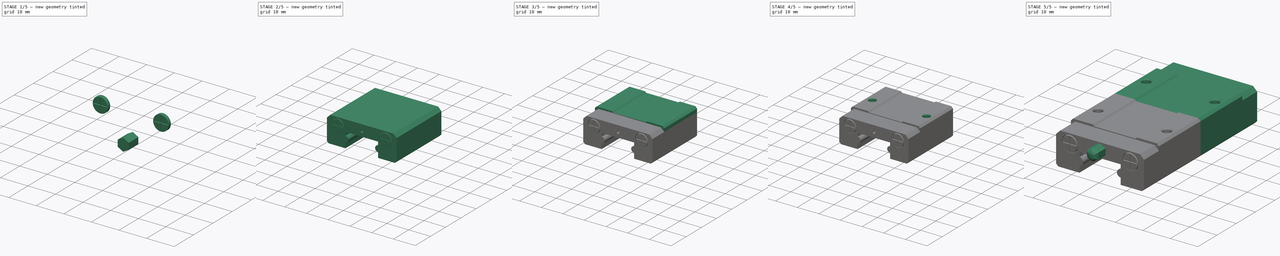
[diagram: build sequence overview — one tinted view per stage of 5, left to right]
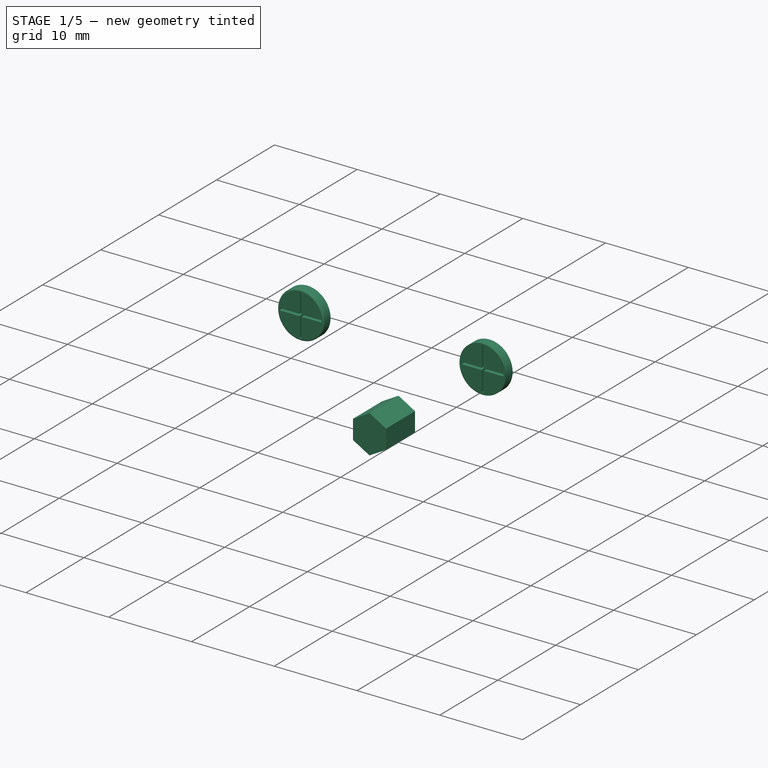
[diagram: stage 1 of 5 — iso view after this stage's code; geometry added in this stage tinted green]
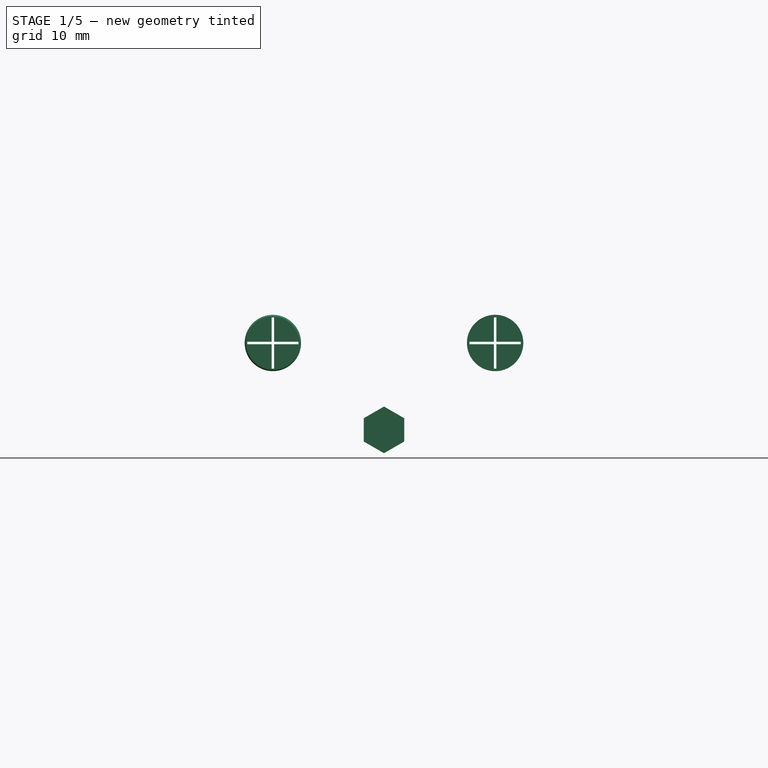
[diagram: stage 1 of 5 — front view after this stage's code; geometry added in this stage tinted green]
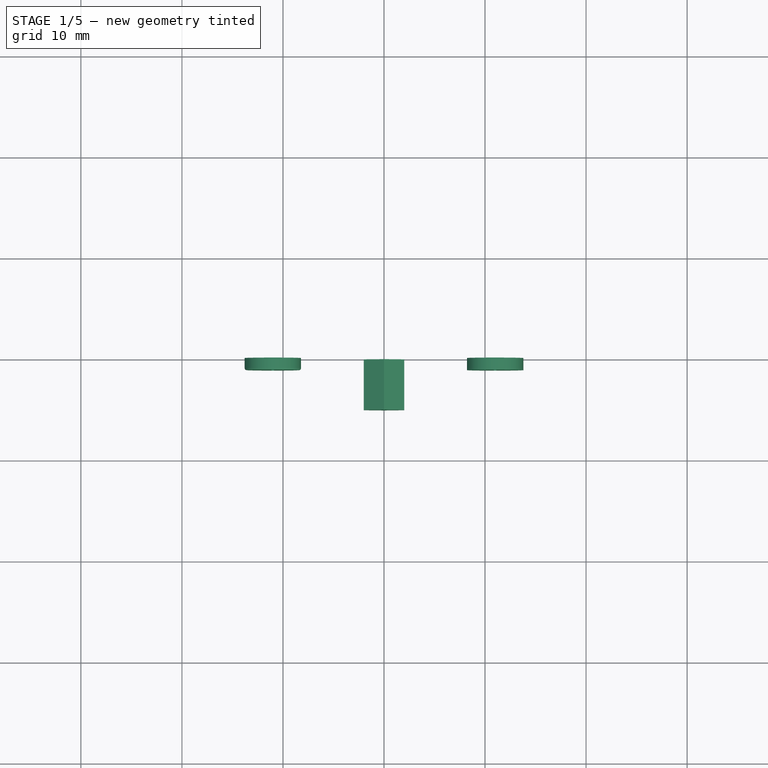
[diagram: stage 1 of 5 — top view after this stage's code; geometry added in this stage tinted green]
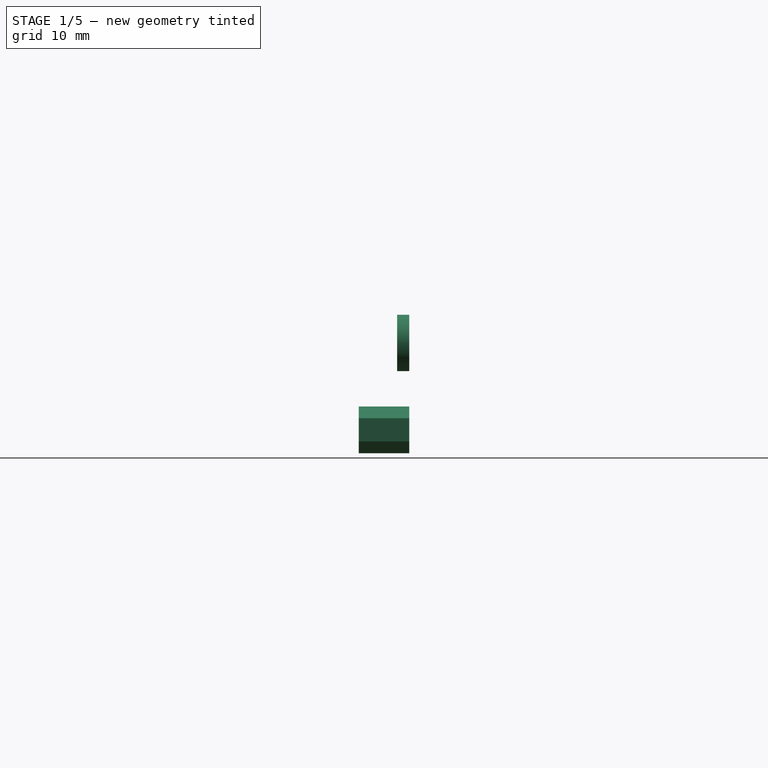
[diagram: stage 1 of 5 — right view after this stage's code; geometry added in this stage tinted green]
FCSTD DOCUMENT  (FreeCAD 0.20R)
Label: LinearSlide-MGN15x-Block
License: Creative Commons Attribution-ShareAlike
LicenseURL: http://creativecommons.org/licenses/by-sa/4.0/
objects: Sketcher::SketchObject×9, PartDesign::Body×6, PartDesign::Pad×5, Part::MultiFuse×5, PartDesign::Pocket×2, PartDesign::Revolution×2, PartDesign::Fillet×2, Spreadsheet::Sheet×1, Part::Cut×1, Part::Mirroring×1, Part::Fillet×1
note: 45 computed .brp shape members not serialized (recipe doc carries the construction recipe); baked Part::Feature solids carry a one-line shape summary decoded from their .brp

FEATURE [Sketcher::SketchObject] Sketch009
  FullyConstrained = true
  MapMode = 5
  Placement = pos=(0,0,0) rot=(1,0,0;1.5708rad)
  Support = -> [XZ_Plane004]
  sketch-geometry (14):
    g0: Circle CenterX=-11 CenterY=8.6 CenterZ=0 NormalX=0 NormalY=0 NormalZ=1 AngleXU=0 Radius=2.79
    g1: Circle CenterX=-11 CenterY=8.6 CenterZ=0 NormalX=0 NormalY=0 NormalZ=1 AngleXU=0 Radius=2.54
    g2: LineSegment StartX=-11.125 StartY=11.1369 StartZ=0 EndX=-10.875 EndY=11.1369 EndZ=0
    g3: LineSegment StartX=-10.875 StartY=11.1369 StartZ=0 EndX=-10.875 EndY=8.725 EndZ=0
    g4: LineSegment StartX=-10.875 StartY=8.725 StartZ=0 EndX=-8.46308 EndY=8.725 EndZ=0
    g5: LineSegment StartX=-8.46308 StartY=8.725 StartZ=0 EndX=-8.46308 EndY=8.475 EndZ=0
    g6: LineSegment StartX=-8.46308 StartY=8.475 StartZ=0 EndX=-10.875 EndY=8.475 EndZ=0
    g7: LineSegment StartX=-10.875 StartY=8.475 StartZ=0 EndX=-10.875 EndY=6.06308 EndZ=0
    g8: LineSegment StartX=-10.875 StartY=6.06308 StartZ=0 EndX=-11.125 EndY=6.06308 EndZ=0
    g9: LineSegment StartX=-11.125 StartY=6.06308 StartZ=0 EndX=-11.125 EndY=8.475 EndZ=0
    g10: LineSegment StartX=-11.125 StartY=8.475 StartZ=0 EndX=-13.5369 EndY=8.475 EndZ=0
    g11: LineSegment StartX=-13.5369 StartY=8.475 StartZ=0 EndX=-13.5369 EndY=8.725 EndZ=0
    g12: LineSegment StartX=-13.5369 StartY=8.725 StartZ=0 EndX=-11.125 EndY=8.725 EndZ=0
    g13: LineSegment StartX=-11.125 StartY=8.725 StartZ=0 EndX=-11.125 EndY=11.1369 EndZ=0
  constraints (42):
    c: Diameter(g0) = 5.58
    c: DistanceY(g-1,g0) = 8.6
    c: DistanceX(g0,g-1) = 11
    c: Diameter(g1) = 5.08
    c: DistanceY(g-1,g1) = 8.6
    c: DistanceX(g1,g-1) = 11
    c: Horizontal(g2)
    c: Coincident(g2,g3)
    c: Vertical(g3)
    c: Coincident(g3,g4)
    c: Horizontal(g4)
    c: Coincident(g4,g5)
    c: Vertical(g5)
    c: Coincident(g5,g6)
    c: Horizontal(g6)
    c: Coincident(g6,g7)
    c: Vertical(g7)
    c: Coincident(g7,g8)
    c: Horizontal(g8)
    c: Coincident(g8,g9)
    c: Vertical(g9)
    c: Coincident(g9,g10)
    c: Horizontal(g10)
    c: Coincident(g10,g11)
    c: Vertical(g11)
    c: Coincident(g11,g12)
    c: Horizontal(g12)
    c: Coincident(g12,g13)
    c: Coincident(g13,g2)
    c: Vertical(g13)
    c: Equal(g8,g5)
    c: Equal(g5,g2)
    c: Equal(g2,g11)
    c: DistanceY(g11,g11) = 0.25
    c: PointOnObject(g7,g1)
    c: PointOnObject(g8,g1)
    c: PointOnObject(g10,g1)
    c: PointOnObject(g11,g1)
    c: PointOnObject(g2,g1)
    c: PointOnObject(g2,g1)
    c: PointOnObject(g4,g1)
    c: PointOnObject(g5,g1)
FEATURE [PartDesign::Pad] Pad003
  Direction = (0,-1,-2e-16)
  Length = 1.2
  Length2 = 10
  Placement = pos=(0,0,0) rot=(1,0,0;1.5708rad)
  Profile = -> Sketch009
  ReferenceAxis = -> Sketch009 [N_Axis]
  Type = 0
FEATURE [Sketcher::SketchObject] Sketch008
  FullyConstrained = true
  MapMode = 5
  Placement = pos=(0,0,0) rot=(1,0,0;1.5708rad)
  Support = -> [XZ_Plane003]
  sketch-geometry (14):
    g0: Circle CenterX=11 CenterY=8.6 CenterZ=0 NormalX=0 NormalY=0 NormalZ=1 AngleXU=0 Radius=2.79
    g1: Circle CenterX=11 CenterY=8.6 CenterZ=0 NormalX=0 NormalY=0 NormalZ=1 AngleXU=0 Radius=2.54
    g2: LineSegment StartX=10.875 StartY=11.1369 StartZ=0 EndX=11.125 EndY=11.1369 EndZ=0
    g3: LineSegment StartX=11.125 StartY=11.1369 StartZ=0 EndX=11.125 EndY=8.725 EndZ=0
    g4: LineSegment StartX=11.125 StartY=8.725 StartZ=0 EndX=13.5369 EndY=8.725 EndZ=0
    g5: LineSegment StartX=13.5369 StartY=8.725 StartZ=0 EndX=13.5369 EndY=8.475 EndZ=0
    g6: LineSegment StartX=13.5369 StartY=8.475 StartZ=0 EndX=11.125 EndY=8.475 EndZ=0
    g7: LineSegment StartX=11.125 StartY=8.475 StartZ=0 EndX=11.125 EndY=6.06308 EndZ=0
    g8: LineSegment StartX=11.125 StartY=6.06308 StartZ=0 EndX=10.875 EndY=6.06308 EndZ=0
    g9: LineSegment StartX=10.875 StartY=6.06308 StartZ=0 EndX=10.875 EndY=8.475 EndZ=0
    g10: LineSegment StartX=10.875 StartY=8.475 StartZ=0 EndX=8.46308 EndY=8.475 EndZ=0
    g11: LineSegment StartX=8.46308 StartY=8.475 StartZ=0 EndX=8.46308 EndY=8.725 EndZ=0
    g12: LineSegment StartX=8.46308 StartY=8.725 StartZ=0 EndX=10.875 EndY=8.725 EndZ=0
    g13: LineSegment StartX=10.875 StartY=8.725 StartZ=0 EndX=10.875 EndY=11.1369 EndZ=0
  constraints (42):
    c: Diameter(g0) = 5.58
    c: DistanceY(g-1,g0) = 8.6
    c: DistanceX(g0,g-1) = -11
    c: Diameter(g1) = 5.08
    c: DistanceY(g-1,g1) = 8.6
    c: DistanceX(g-1,g1) = 11
    c: Horizontal(g2)
    c: Coincident(g2,g3)
    c: Vertical(g3)
    c: Coincident(g3,g4)
    c: Horizontal(g4)
    c: Coincident(g4,g5)
    c: Vertical(g5)
    c: Coincident(g5,g6)
    c: Horizontal(g6)
    c: Coincident(g6,g7)
    c: Vertical(g7)
    c: Coincident(g7,g8)
    c: Horizontal(g8)
    c: Coincident(g8,g9)
    c: Vertical(g9)
    c: Coincident(g9,g10)
    c: Horizontal(g10)
    c: Coincident(g10,g11)
    c: Vertical(g11)
    c: Coincident(g11,g12)
    c: Horizontal(g12)
    c: Coincident(g12,g13)
    c: Coincident(g13,g2)
    c: Vertical(g13)
    c: Equal(g8,g5)
    c: Equal(g5,g2)
    c: Equal(g2,g11)
    c: DistanceY(g11,g11) = 0.25
    c: PointOnObject(g8,g1)
    c: PointOnObject(g2,g1)
    c: PointOnObject(g2,g1)
    c: PointOnObject(g4,g1)
    c: PointOnObject(g5,g1)
    c: PointOnObject(g10,g1)
    c: PointOnObject(g11,g1)
    c: PointOnObject(g7,g1)
FEATURE [PartDesign::Pad] Pad004
  Direction = (0,-1,-2e-16)
  Length = 1.2
  Length2 = 10
  Placement = pos=(0,0,0) rot=(1,0,0;1.5708rad)
  Profile = -> Sketch008
  ReferenceAxis = -> Sketch008 [N_Axis]
  Type = 0
FEATURE [PartDesign::Body] Body003  label="Right cover screw"
  Group = -> [Sketch008,Pad004,Fillet]
  Origin = -> Origin003
  Placement = pos=(0,-28.4,0) rot=(0,0,1;0rad)
  Tip = -> Fillet
  expr: .Placement.Base.y = (<<Set MGN Block Parameters>>.length / 2 - 1mm) * -1
FEATURE [PartDesign::Fillet] Fillet001
  Base = -> Pad003 [Edge3]
  BaseFeature = -> Pad003
  Placement = pos=(0,0,0) rot=(1,0,0;1.5708rad)
  Radius = 0.2
  SupportTransform = false
  UseAllEdges = false
FEATURE [Sketcher::SketchObject] Sketch011
  FullyConstrained = true
  MapMode = 5
  Placement = pos=(0,0,0) rot=(1,0,0;1.5708rad)
  Support = -> [XZ_Plane006]
  sketch-geometry (7):
    g0: LineSegment StartX=2 StartY=-1.1547 StartZ=0 EndX=2 EndY=1.1547 EndZ=0
    g1: LineSegment StartX=2 StartY=1.1547 StartZ=0 EndX=-2.2e-15 EndY=2.3094 EndZ=0
    g2: LineSegment StartX=-2.2e-15 StartY=2.3094 StartZ=0 EndX=-2 EndY=1.1547 EndZ=0
    g3: LineSegment StartX=-2 StartY=1.1547 StartZ=0 EndX=-2 EndY=-1.1547 EndZ=0
    g4: LineSegment StartX=-2 StartY=-1.1547 StartZ=0 EndX=-2.2e-15 EndY=-2.3094 EndZ=0
    g5: LineSegment StartX=-2.2e-15 StartY=-2.3094 StartZ=0 EndX=2 EndY=-1.1547 EndZ=0
    g6: Circle CenterX=0 CenterY=0 CenterZ=0 NormalX=0 NormalY=0 NormalZ=1 AngleXU=0 Radius=2.3094
  constraints (16):
    c: Coincident(g0,g1)
    c: Coincident(g1,g2)
    c: Coincident(g2,g3)
    c: Coincident(g3,g4)
    c: Coincident(g4,g5)
    c: Coincident(g5,g0)
    c: Equal(g0, g1-g5) x5
    c: PointOnObject(g0,g6)
    c: PointOnObject(g1,g6)
    c: PointOnObject(g2,g6)
    c: PointOnObject(g3,g6)
    c: PointOnObject(g4,g6)
    c: PointOnObject(g5,g6)
    c: Vertical(g3)
    c: Coincident(g6,g-1)
    c: DistanceX(g2,g0) = 4
FEATURE [PartDesign::Pad] Pad005
  Direction = (0,-1,-2e-16)
  Length = 5
  Length2 = 10
  Placement = pos=(0,0,0) rot=(1,0,0;1.5708rad)
  Profile = -> Sketch011
  ReferenceAxis = -> Sketch011 [N_Axis]
  Type = 0
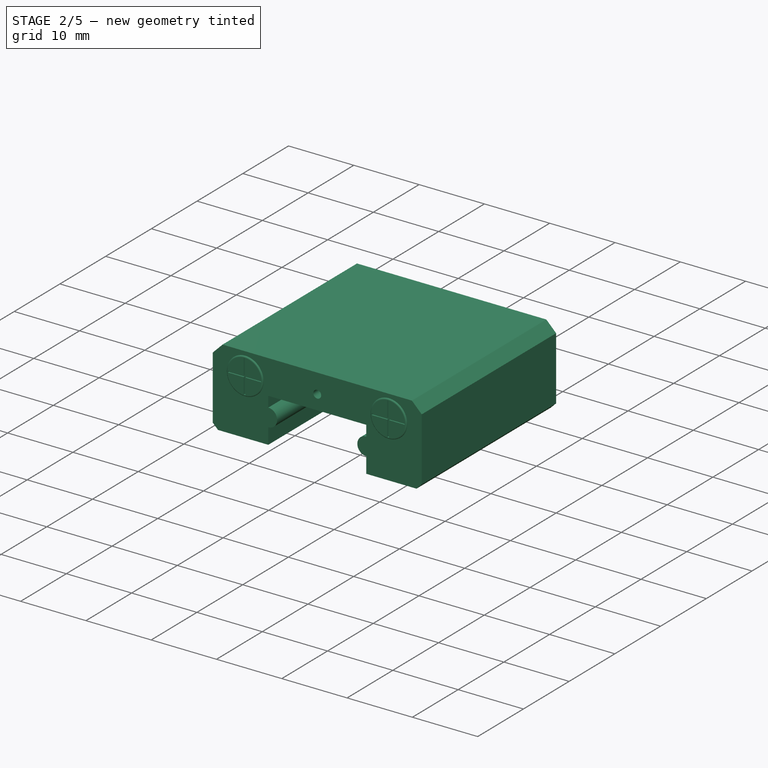
[diagram: stage 2 of 5 — iso view after this stage's code; geometry added in this stage tinted green]
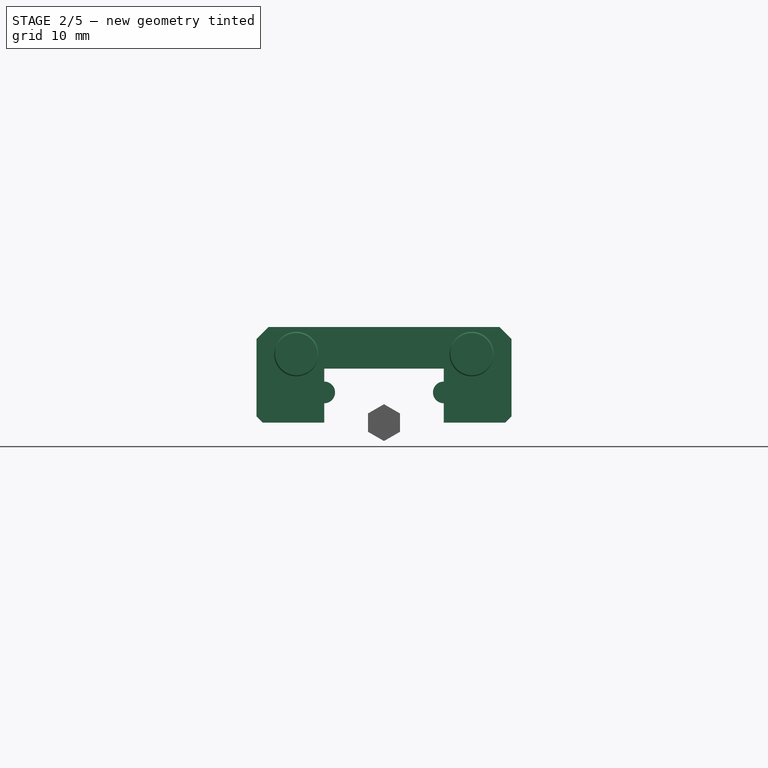
[diagram: stage 2 of 5 — front view after this stage's code; geometry added in this stage tinted green]
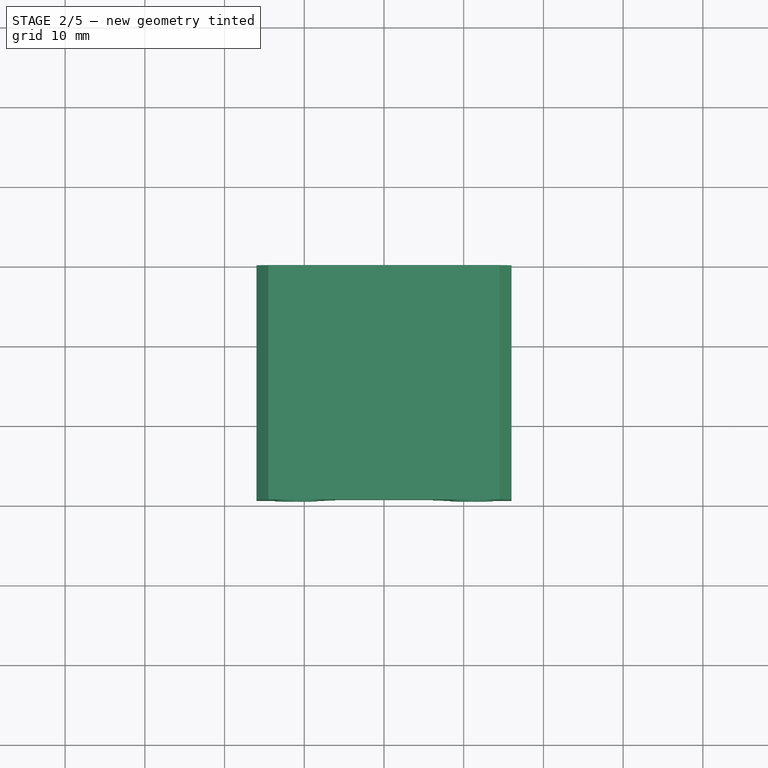
[diagram: stage 2 of 5 — top view after this stage's code; geometry added in this stage tinted green]
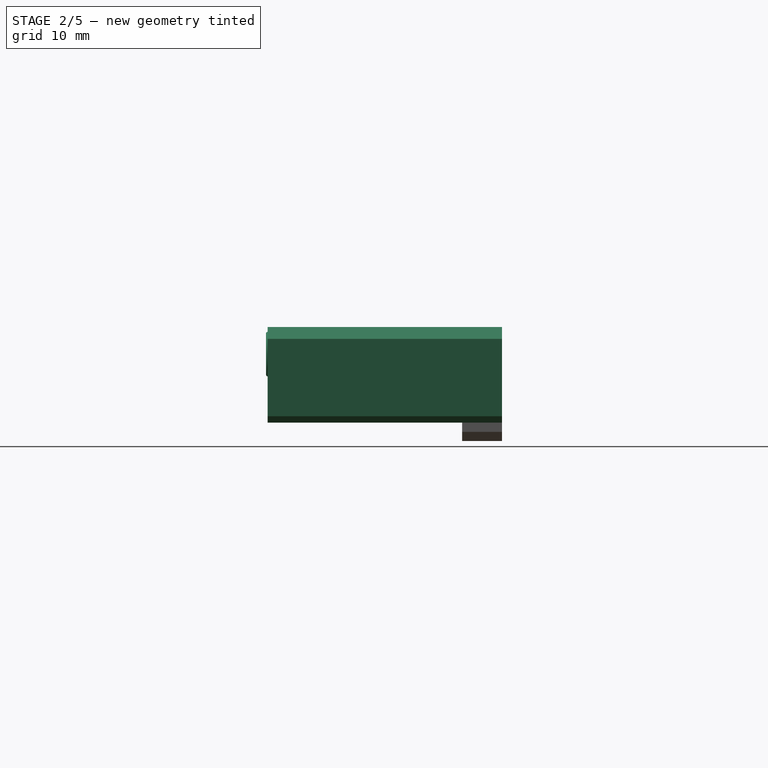
[diagram: stage 2 of 5 — right view after this stage's code; geometry added in this stage tinted green]
FEATURE [Sketcher::SketchObject] Sketch  label="Block main section"
  FullyConstrained = true
  MapMode = 5
  Placement = pos=(0,0,0) rot=(1,0,0;1.5708rad)
  Support = -> [XZ_Plane]
  sketch-geometry (16):
    g0: LineSegment StartX=-15.2 StartY=0 StartZ=0 EndX=-7.5 EndY=0 EndZ=0
    g1: LineSegment StartX=-7.5 StartY=0 StartZ=0 EndX=-7.5 EndY=2.43 EndZ=0
    g2: LineSegment StartX=-7.5 StartY=6.78 StartZ=0 EndX=7.5 EndY=6.78 EndZ=0
    g3: LineSegment StartX=7.5 StartY=6.78 StartZ=0 EndX=7.5 EndY=5.15 EndZ=0
    g4: LineSegment StartX=7.5 StartY=0 StartZ=0 EndX=15.2 EndY=0 EndZ=0
    g5: ArcOfCircle CenterX=-7.5 CenterY=3.79 CenterZ=0 NormalX=0 NormalY=0 NormalZ=1 AngleXU=0 Radius=1.36 StartAngle=4.71239 EndAngle=7.85398
    g6: ArcOfCircle CenterX=7.5 CenterY=3.79 CenterZ=0 NormalX=0 NormalY=0 NormalZ=1 AngleXU=0 Radius=1.36 StartAngle=1.5708 EndAngle=4.71239
    g7: LineSegment StartX=-7.5 StartY=5.15 StartZ=0 EndX=-7.5 EndY=6.78 EndZ=0
    g8: LineSegment StartX=7.5 StartY=2.43 StartZ=0 EndX=7.5 EndY=0 EndZ=0
    g9: LineSegment StartX=-16 StartY=10.5 StartZ=0 EndX=-14.5 EndY=12 EndZ=0
    g10: LineSegment StartX=-14.5 StartY=12 StartZ=0 EndX=14.5 EndY=12 EndZ=0
    g11: LineSegment StartX=14.5 StartY=12 StartZ=0 EndX=16 EndY=10.5 EndZ=0
    g12: LineSegment StartX=-16 StartY=10.5 StartZ=0 EndX=-16 EndY=0.8 EndZ=0
    g13: LineSegment StartX=-16 StartY=0.8 StartZ=0 EndX=-15.2 EndY=-1e-16 EndZ=0
    g14: LineSegment StartX=16 StartY=10.5 StartZ=0 EndX=16 EndY=0.8 EndZ=0
    g15: LineSegment StartX=16 StartY=0.8 StartZ=0 EndX=15.2 EndY=-1e-16 EndZ=0
  constraints (42):
    c: Coincident(g0,g1)
    c: Vertical(g1)
    c: Coincident(g8,g4)
    c: Symmetric(g2,g2,g-2)
    c: Symmetric(g7,g3,g-2)
    c: Symmetric(g0,g8,g-2)
    c: Coincident(g2,g3)
    c: Radius(g6) = 1.36
    c: Symmetric(g6,g5,g-2)
    c: PointOnObject(g5,g1)
    c: Coincident(g1,g5)
    c: Coincident(g7,g5)
    c: Coincident(g6,g8)
    c: Coincident(g6,g3)
    c: Symmetric(g6,g1,g-2)
    c: Symmetric(g5,g3,g-2)
    c: DistanceX(g2,g2) = 15
    c: Vertical(g3)
    c: DistanceX(g0,g0) = 7.7
    c: Horizontal(g0)
    c: DistanceY(g0,g5) = 3.79
    c: DistanceY(g4,g2) = 6.78
    c: Coincident(g9,g10)
    c: Coincident(g10,g11)
    c: Symmetric(g11,g9,g-2)
    c: Symmetric(g10,g9,g-2)
    c: DistanceY(g0,g9) = 12
    c: DistanceX(g9,g11) = 32
    c: DistanceY(g9,g9) = 1.5
    c: DistanceX(g9,g9) = 1.5
    c: Coincident(g9,g12)
    c: Vertical(g12)
    c: Coincident(g12,g13)
    c: Coincident(g13,g0)
    c: Coincident(g11,g14)
    c: Coincident(g14,g15)
    c: Coincident(g15,g4)
    c: Symmetric(g4,g0,g-2)
    c: Symmetric(g14,g12,g-2)
    c: DistanceY(g0,g12) = 0.8
    c: DistanceX(g0,g4) = 15
    c: PointOnObject(g0,g-1)
FEATURE [PartDesign::Pad] Pad
  Direction = (0,-1,-2e-16)
  Length = 29.4
  Length2 = 10
  Placement = pos=(0,0,0) rot=(1,0,0;1.5708rad)
  Profile = -> Sketch
  ReferenceAxis = -> Sketch [N_Axis]
  Type = 0
  expr: Length = <<Set MGN Block Parameters>>.length / 2
FEATURE [Spreadsheet::Sheet] Spreadsheet  label="Set MGN Block Parameters"
  cells = A1=Taken from the datasheet at http://motioncontrolsystems.hiwin.us/Asset/MG-Series-Catalog.pdf; B1=Taken from the datasheet at http://motioncontrolsystems.hiwin.us/Asset/MG-Series-Catalog.pdf; C1=Taken from the datasheet at http://motioncontrolsystems.hiwin.us/Asset/MG-Series-Catalog.pdf; D1=Taken from the datasheet at http://motioncontrolsystems.hiwin.us/Asset/MG-Series-Catalog.pdf; E1=Taken from the datasheet at http://motioncontrolsystems.hiwin.us/Asset/MG-Series-Catalog.pdf; F1=Taken from the datasheet at http://motioncontrolsystems.hiwin.us/Asset/MG-Series-Catalog.pdf; G1=Taken from the datasheet at http://motioncontrolsystems.hiwin.us/Asset/MG-Series-Catalog.pdf; H1=Taken from the datasheet at http://motioncontrolsystems.hiwin.us/Asset/MG-Series-Catalog.pdf; A2=Copy the data corresponding to the desired model in the "SetValues" column; A3=Copia los datos correspondientes al modelo deseado a la columna "SetValues"; A4=Description; B4=Descripción; C4=Parameter; D4=SetValues; E4=MGN15C; F4=MGN15H; A5=Model name; B5=Nombre del modelo; C5=Mn; D5(modelName)=MGN15H; E5=MGN15C; F5=MGN15H; A6=Distancia entre taladros 2; B6=Distancia entre taladros 2; C6=C ; D6(distanceBetwenDrills2)==25mm; E6==20mm; F6==25mm; A7=Metal base length; B7=Longitud base metalica; C7=L1 ; D7(metalLength)==43.4mm; E7==26.7mm; F7==43.4mm; A8=Total length; B8=Longitud total; C8=L ; D8(length)==58.8mm; E8==42.1mm; F8==58.8mm
FEATURE [Sketcher::SketchObject] Sketch001
  FullyConstrained = true
  MapMode = 5
  Placement = pos=(0,-29.4,-6.5e-15) rot=(1,0,0;1.5708rad)
  Support = -> [Pad]
  sketch-geometry (1):
    g0: Circle CenterX=0 CenterY=9 CenterZ=0 NormalX=0 NormalY=0 NormalZ=1 AngleXU=0 Radius=0.6
  constraints (3):
    c: PointOnObject(g0,g-2)
    c: Diameter(g0) = 1.2
    c: DistanceY(g-1,g0) = 9
FEATURE [PartDesign::Pocket] Pocket
  BaseFeature = -> Pad
  Direction = (0,1,2e-16)
  Length = 3
  Length2 = 5
  Placement = pos=(0,0,0) rot=(1,0,0;1.5708rad)
  Profile = -> Sketch001
  ReferenceAxis = -> Sketch001 [N_Axis]
  Type = 0
FEATURE [PartDesign::Fillet] Fillet
  Base = -> Pad004 [Edge3]
  BaseFeature = -> Pad004
  Placement = pos=(0,0,0) rot=(1,0,0;1.5708rad)
  Radius = 0.2
  SupportTransform = false
  UseAllEdges = false
FEATURE [PartDesign::Body] Body004  label="Left cover screw"
  Group = -> [Sketch009,Pad003,Fillet001]
  Origin = -> Origin004
  Placement = pos=(0,-28.4,0) rot=(0,0,1;0rad)
  Tip = -> Fillet001
  expr: .Placement.Base.y = (<<Set MGN Block Parameters>>.length / 2 - 1mm) * -1
FEATURE [Part::MultiFuse] Fusion001  label="Cover screws"
  Shapes = -> [Body004,Body003]
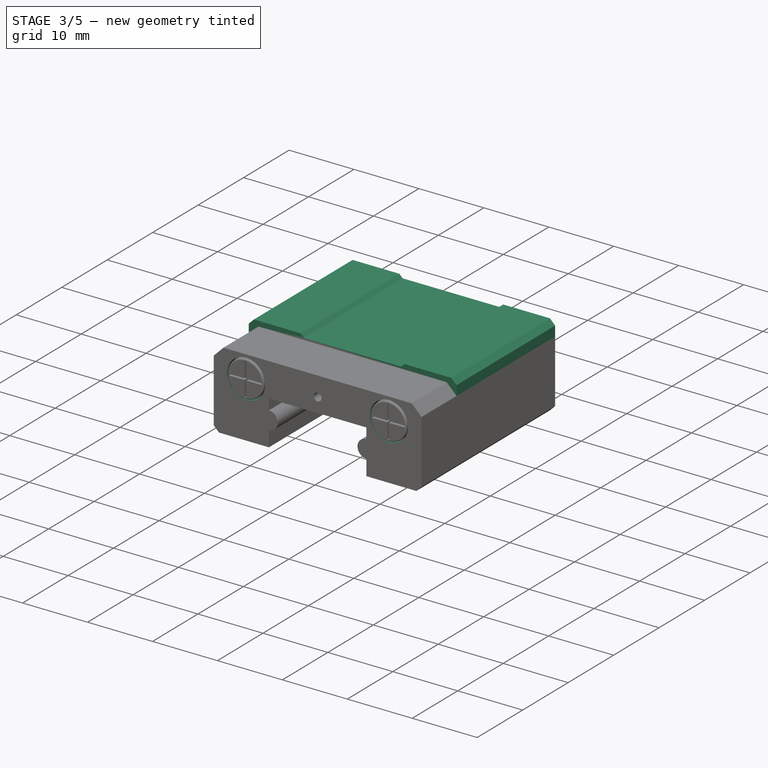
[diagram: stage 3 of 5 — iso view after this stage's code; geometry added in this stage tinted green]
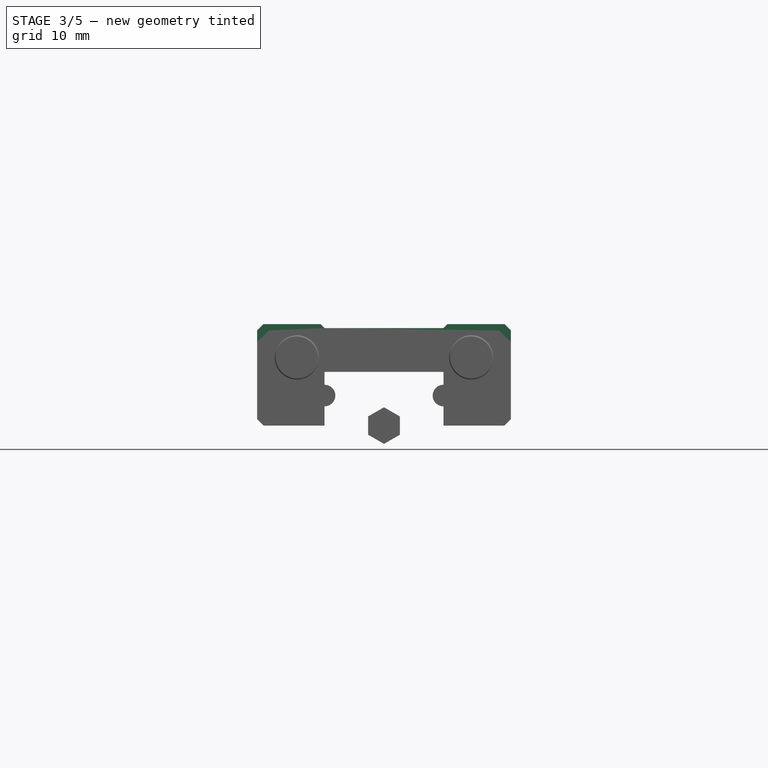
[diagram: stage 3 of 5 — front view after this stage's code; geometry added in this stage tinted green]
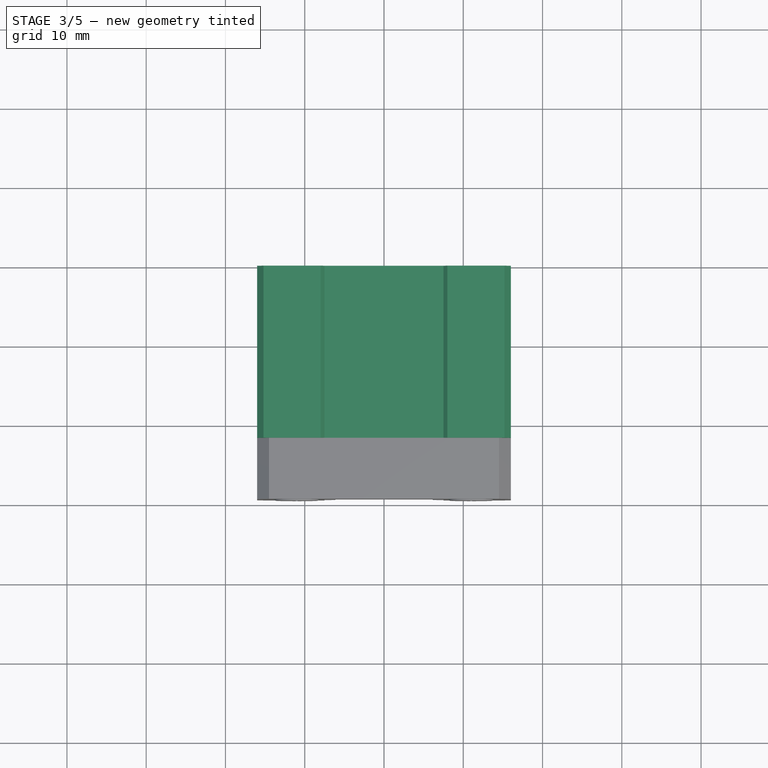
[diagram: stage 3 of 5 — top view after this stage's code; geometry added in this stage tinted green]
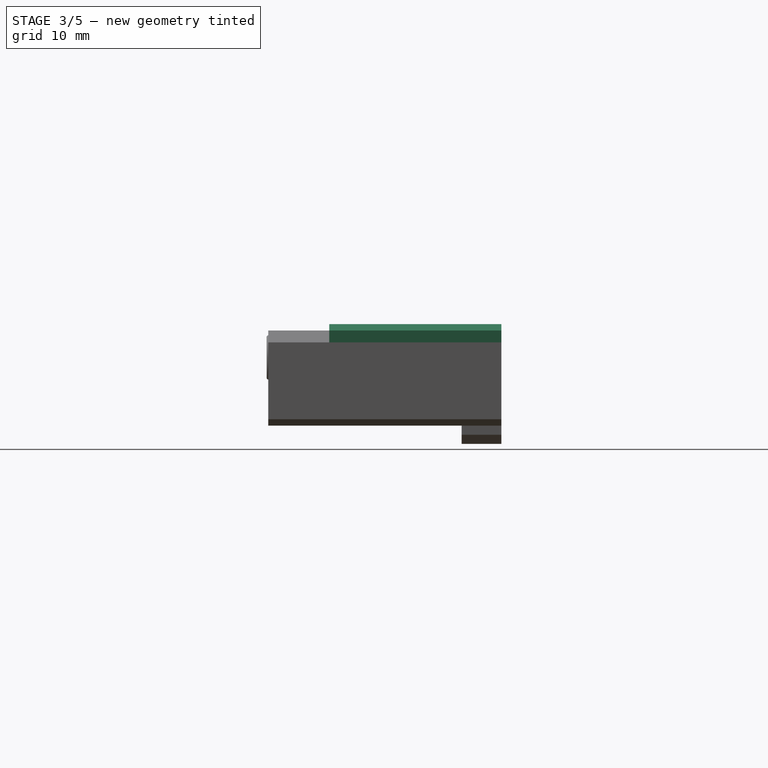
[diagram: stage 3 of 5 — right view after this stage's code; geometry added in this stage tinted green]
FEATURE [Sketcher::SketchObject] Sketch002
  FullyConstrained = true
  MapMode = 5
  Placement = pos=(0,-29.4,-6.5e-15) rot=(1,0,0;1.5708rad)
  Support = -> [Pocket]
  sketch-geometry (2):
    g0: Circle CenterX=-11 CenterY=8.6 CenterZ=0 NormalX=0 NormalY=0 NormalZ=1 AngleXU=0 Radius=2.94
    g1: Circle CenterX=11 CenterY=8.6 CenterZ=0 NormalX=0 NormalY=0 NormalZ=1 AngleXU=0 Radius=2.94
  constraints (5):
    c: Symmetric(g1,g0,g-2)
    c: Equal(g0,g1)
    c: Diameter(g0) = 5.88
    c: DistanceY(g-1,g0) = 8.6
    c: DistanceX(g0,g1) = 22
FEATURE [PartDesign::Pocket] Pocket001
  BaseFeature = -> Pocket
  Direction = (0,1,2e-16)
  Length = 1
  Length2 = 5
  Placement = pos=(0,0,0) rot=(1,0,0;1.5708rad)
  Profile = -> Sketch002
  ReferenceAxis = -> Sketch002 [N_Axis]
  Type = 0
FEATURE [PartDesign::Body] Body002  label="Left Drill"
  Group = -> [Sketch006,Revolution001]
  Origin = -> Origin002
  Placement = pos=(-12.5,-12.5,0) rot=(0,0,1;0rad)
  Tip = -> Revolution001
  expr: .Placement.Base.x = 3.5mm - 16mm
  expr: .Placement.Base.y = <<Set MGN Block Parameters>>.distanceBetwenDrills2 / 2 * -1
FEATURE [Sketcher::SketchObject] Sketch007
  FullyConstrained = true
  MapMode = 5
  Placement = pos=(0,0,0) rot=(-1,0,0;1.5708rad)
  Support = -> [Pocket001]
  sketch-geometry (16):
    g0: LineSegment StartX=-7.5 StartY=0 StartZ=0 EndX=-15.2 EndY=0 EndZ=0
    g1: LineSegment StartX=-15.2 StartY=0 StartZ=0 EndX=-16 EndY=-0.8 EndZ=0
    g2: LineSegment StartX=-16 StartY=-0.8 StartZ=0 EndX=-16 EndY=-12 EndZ=0
    g3: LineSegment StartX=-16 StartY=-12 StartZ=0 EndX=-15.2 EndY=-12.8 EndZ=0
    g4: LineSegment StartX=-15.2 StartY=-12.8 StartZ=0 EndX=-8 EndY=-12.8 EndZ=0
    g5: LineSegment StartX=-8 StartY=-12.8 StartZ=0 EndX=-7.5 EndY=-12.3 EndZ=0
    g6: LineSegment StartX=-7.5 StartY=-12.3 StartZ=0 EndX=7.5 EndY=-12.3 EndZ=0
    g7: LineSegment StartX=7.5 StartY=-12.3 StartZ=0 EndX=8 EndY=-12.8 EndZ=0
    g8: LineSegment StartX=8 StartY=-12.8 StartZ=0 EndX=15.2 EndY=-12.8 EndZ=0
    g9: LineSegment StartX=15.2 StartY=-12.8 StartZ=0 EndX=16 EndY=-12 EndZ=0
    g10: LineSegment StartX=16 StartY=-12 StartZ=0 EndX=16 EndY=-0.8 EndZ=0
    g11: LineSegment StartX=16 StartY=-0.8 StartZ=0 EndX=15.2 EndY=1e-16 EndZ=0
    g12: LineSegment StartX=15.2 StartY=1e-16 StartZ=0 EndX=7.5 EndY=0 EndZ=0
    g13: LineSegment StartX=7.5 StartY=0 StartZ=0 EndX=7.5 EndY=-6.78 EndZ=0
    g14: LineSegment StartX=7.5 StartY=-6.78 StartZ=0 EndX=-7.5 EndY=-6.78 EndZ=0
    g15: LineSegment StartX=-7.5 StartY=-6.78 StartZ=0 EndX=-7.5 EndY=0 EndZ=0
  constraints (41):
    c: Horizontal(g0)
    c: Coincident(g0,g1)
    c: Coincident(g1,g2)
    c: Vertical(g2)
    c: Coincident(g2,g3)
    c: Coincident(g3,g4)
    c: Horizontal(g4)
    c: Coincident(g4,g5)
    c: Coincident(g5,g6)
    c: Coincident(g6,g7)
    c: Coincident(g7,g8)
    c: Coincident(g8,g9)
    c: Coincident(g9,g10)
    c: Coincident(g10,g11)
    c: Coincident(g11,g12)
    c: Coincident(g12,g13)
    c: Vertical(g13)
    c: Coincident(g13,g14)
    c: Horizontal(g14)
    c: Coincident(g14,g15)
    c: Coincident(g15,g0)
    c: Vertical(g15)
    c: Symmetric(g5,g6,g-2)
    c: Symmetric(g4,g7,g-2)
    c: Symmetric(g3,g8,g-2)
    c: Symmetric(g1,g10,g-2)
    c: Symmetric(g2,g9,g-2)
    c: Symmetric(g0,g11,g-2)
    c: Symmetric(g12,g0,g-2)
    c: DistanceX(g0,g12) = 15
    c: DistanceX(g6,g6) = 15
    c: DistanceX(g1,g0) = 8.5
    c: DistanceX(g1,g0) = 0.8
    c: DistanceY(g1,g0) = 0.8
    c: PointOnObject(g0,g-1)
    c: DistanceY(g13,g13) = 6.78
    c: DistanceY(g2,g0) = 12
    c: DistanceY(g3,g2) = 0.8
    c: DistanceX(g2,g3) = 0.8
    c: Angle(g5,g6) = 2.35619
    c: DistanceX(g2,g4) = 8
FEATURE [PartDesign::Pad] Pad001
  BaseFeature = -> Pocket001
  Direction = (0,1,2e-16)
  Length = 21.7
  Length2 = 10
  Placement = pos=(0,0,0) rot=(1,0,0;1.5708rad)
  Profile = -> Sketch007
  ReferenceAxis = -> Sketch007 [N_Axis]
  Reversed = true
  Type = 0
  expr: Length = <<Set MGN Block Parameters>>.metalLength / 2
FEATURE [Part::MultiFuse] Fusion002  label="Main block with cover screws"
  Shapes = -> [Fusion001,Body]
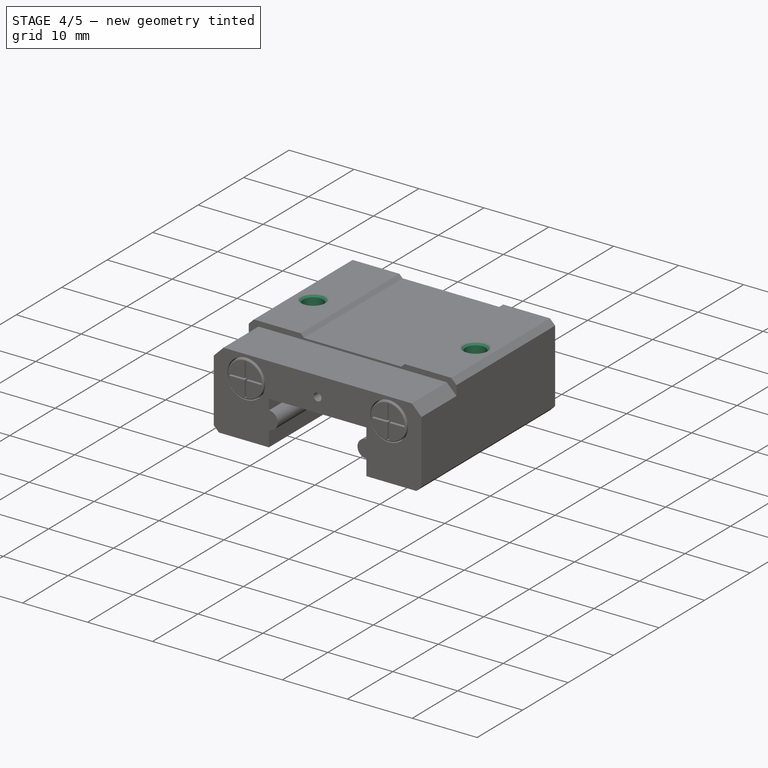
[diagram: stage 4 of 5 — iso view after this stage's code; geometry added in this stage tinted green]
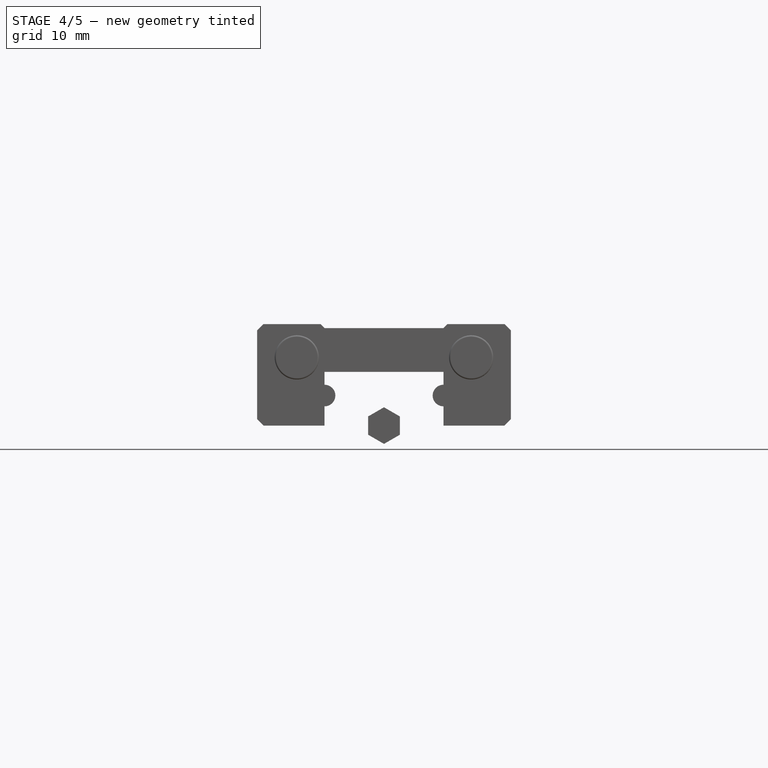
[diagram: stage 4 of 5 — front view after this stage's code; geometry added in this stage tinted green]
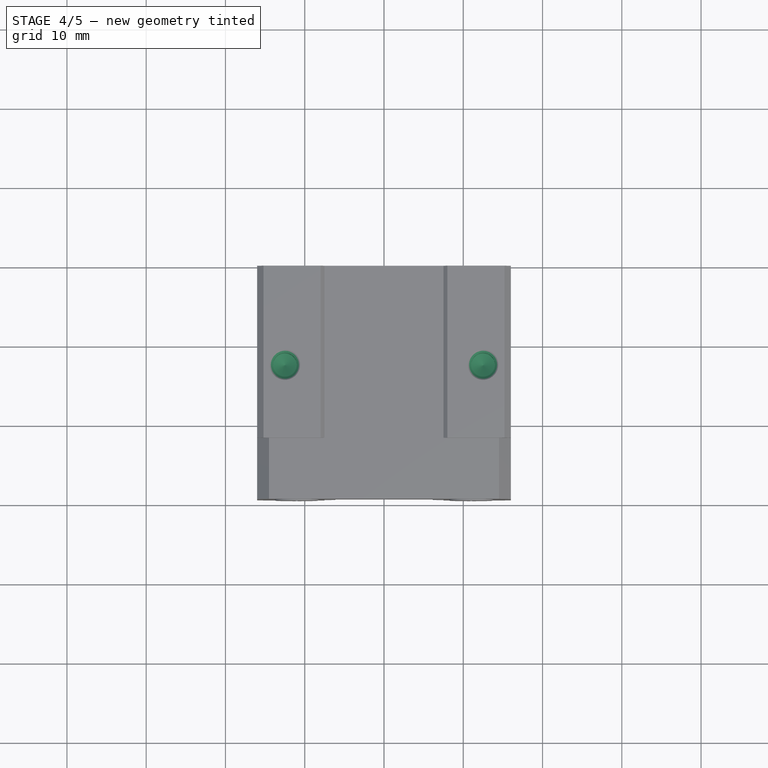
[diagram: stage 4 of 5 — top view after this stage's code; geometry added in this stage tinted green]
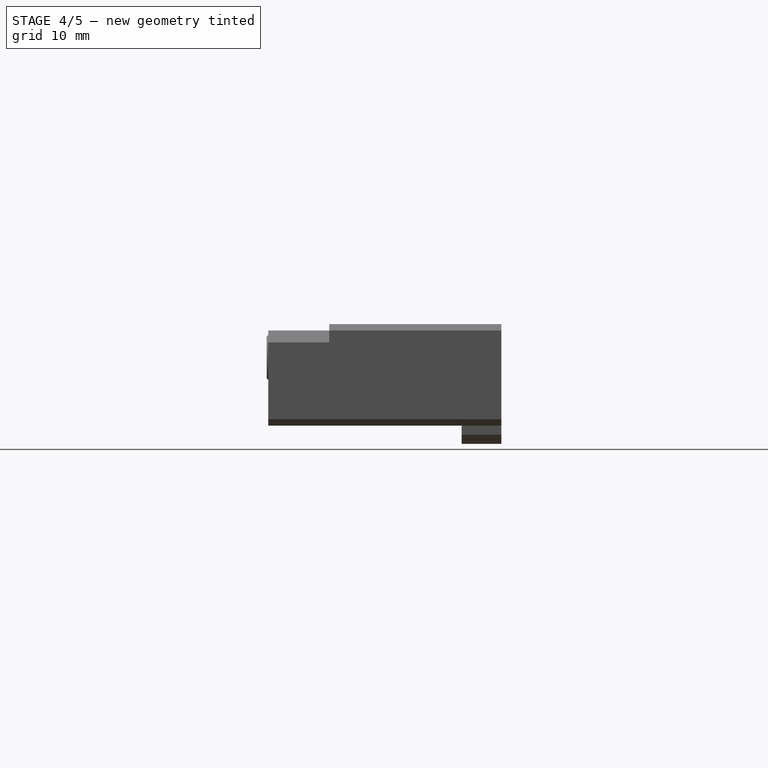
[diagram: stage 4 of 5 — right view after this stage's code; geometry added in this stage tinted green]
FEATURE [Sketcher::SketchObject] Sketch005
  FullyConstrained = true
  MapMode = 5
  Placement = pos=(0,0,0) rot=(1,0,0;1.5708rad)
  Support = -> [XZ_Plane001]
  sketch-geometry (5):
    g0: LineSegment StartX=1.5 StartY=12.4 StartZ=0 EndX=1.5 EndY=9.70129 EndZ=0
    g1: LineSegment StartX=1.5 StartY=9.70129 StartZ=0 EndX=0 EndY=8.8 EndZ=0
    g2: LineSegment StartX=0 StartY=8.8 StartZ=0 EndX=0 EndY=12.8 EndZ=0
    g3: LineSegment StartX=0 StartY=12.8 StartZ=0 EndX=1.9 EndY=12.8 EndZ=0
    g4: LineSegment StartX=1.9 StartY=12.8 StartZ=0 EndX=1.5 EndY=12.4 EndZ=0
  constraints (15):
    c: Coincident(g0,g1)
    c: Coincident(g1,g2)
    c: Vertical(g2)
    c: Coincident(g2,g3)
    c: Horizontal(g3)
    c: Coincident(g3,g4)
    c: Coincident(g4,g0)
    c: Parallel(g0,g2)
    c: DistanceX(g2,g0) = 1.5
    c: DistanceY(g2,g2) = 4
    c: Angle(g1,g2) = 1.02974
    c: DistanceY(g0,g3) = 0.4
    c: DistanceX(g0,g3) = 0.4
    c: DistanceY(g-1,g3) = 12.8
    c: PointOnObject(g1,g-2)
FEATURE [PartDesign::Revolution] Revolution
  Angle = 360
  Axis = (0,-2e-16,1)
  Base = (0,0,0)
  Placement = pos=(0,0,0) rot=(1,0,0;1.5708rad)
  Profile = -> Sketch005
  ReferenceAxis = -> Sketch005 [V_Axis]
  Reversed = true
FEATURE [PartDesign::Body] Body001  label="Right Drill"
  Group = -> [Sketch005,Revolution]
  Origin = -> Origin001
  Placement = pos=(12.5,-12.5,0) rot=(0,0,1;0rad)
  Tip = -> Revolution
  expr: .Placement.Base.x = 16mm - 3.5mm
  expr: .Placement.Base.y = <<Set MGN Block Parameters>>.distanceBetwenDrills2 / 2 * -1
FEATURE [Sketcher::SketchObject] Sketch006
  FullyConstrained = true
  MapMode = 5
  Placement = pos=(0,0,0) rot=(1,0,0;1.5708rad)
  Support = -> [XZ_Plane002]
  sketch-geometry (5):
    g0: LineSegment StartX=1.9 StartY=12.8 StartZ=0 EndX=0 EndY=12.8 EndZ=0
    g1: LineSegment StartX=0 StartY=12.8 StartZ=0 EndX=0 EndY=8.8 EndZ=0
    g2: LineSegment StartX=0 StartY=8.8 StartZ=0 EndX=1.5 EndY=9.70129 EndZ=0
    g3: LineSegment StartX=1.5 StartY=9.70129 StartZ=0 EndX=1.5 EndY=12.4 EndZ=0
    g4: LineSegment StartX=1.5 StartY=12.4 StartZ=0 EndX=1.9 EndY=12.8 EndZ=0
  constraints (15):
    c: Coincident(g0,g1)
    c: Coincident(g1,g2)
    c: Coincident(g2,g3)
    c: Coincident(g3,g4)
    c: Coincident(g4,g0)
    c: Vertical(g1)
    c: Horizontal(g0)
    c: Parallel(g3,g1)
    c: Angle(g2,g1) = 1.02974
    c: DistanceY(g-1,g0) = 12.8
    c: DistanceY(g1,g0) = 4
    c: DistanceX(g0,g3) = 1.5
    c: DistanceX(g3,g0) = 0.4
    c: DistanceY(g3,g0) = 0.4
    c: PointOnObject(g1,g-2)
FEATURE [PartDesign::Revolution] Revolution001
  Angle = 360
  Axis = (0,-2e-16,1)
  Base = (0,0,0)
  Placement = pos=(0,0,0) rot=(1,0,0;1.5708rad)
  Profile = -> Sketch006
  ReferenceAxis = -> Sketch006 [V_Axis]
  Reversed = true
FEATURE [PartDesign::Body] Body  label="Main Block"
  Group = -> [Sketch,Pad,Sketch001,Pocket,Sketch002,Pocket001,Sketch007,Pad001]
  Origin = -> Origin
  Tip = -> Pad001
FEATURE [Part::MultiFuse] Fusion  label="Mounting drills"
  Shapes = -> [Body002,Body001]
FEATURE [Part::Cut] Cut
  Base = -> Fusion002
  Tool = -> Fusion
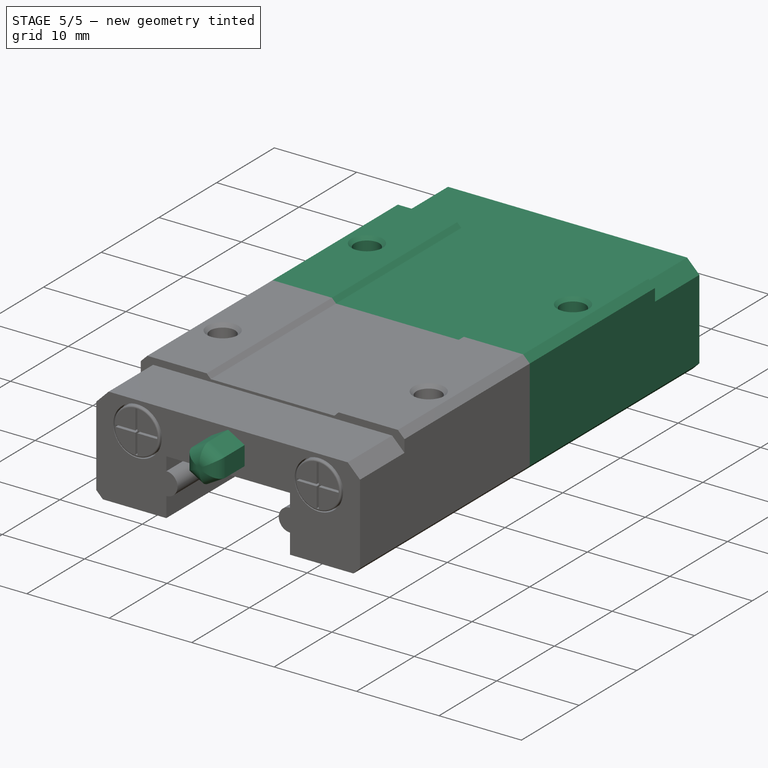
[diagram: stage 5 of 5 — iso view after this stage's code; geometry added in this stage tinted green]
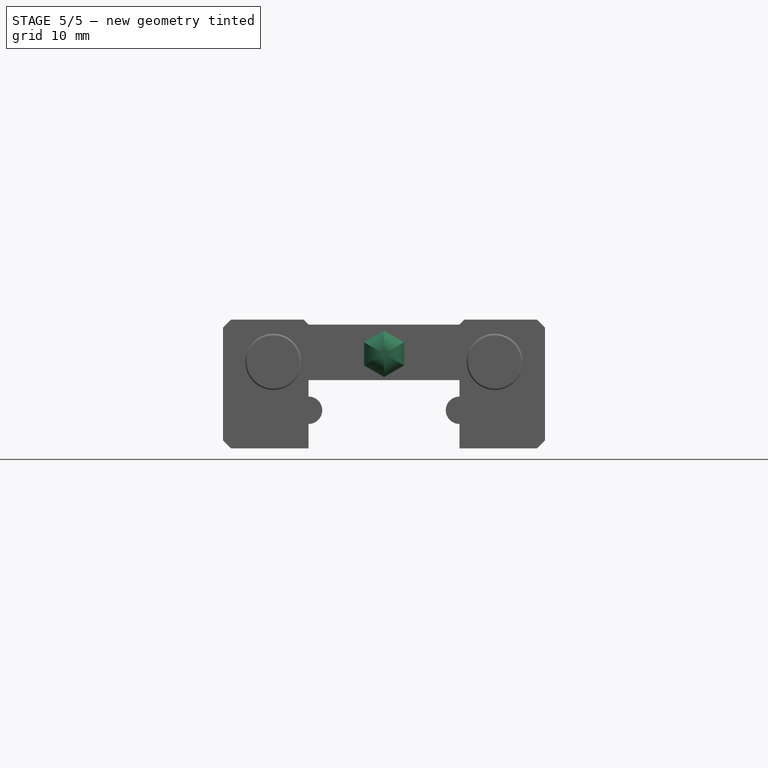
[diagram: stage 5 of 5 — front view after this stage's code; geometry added in this stage tinted green]
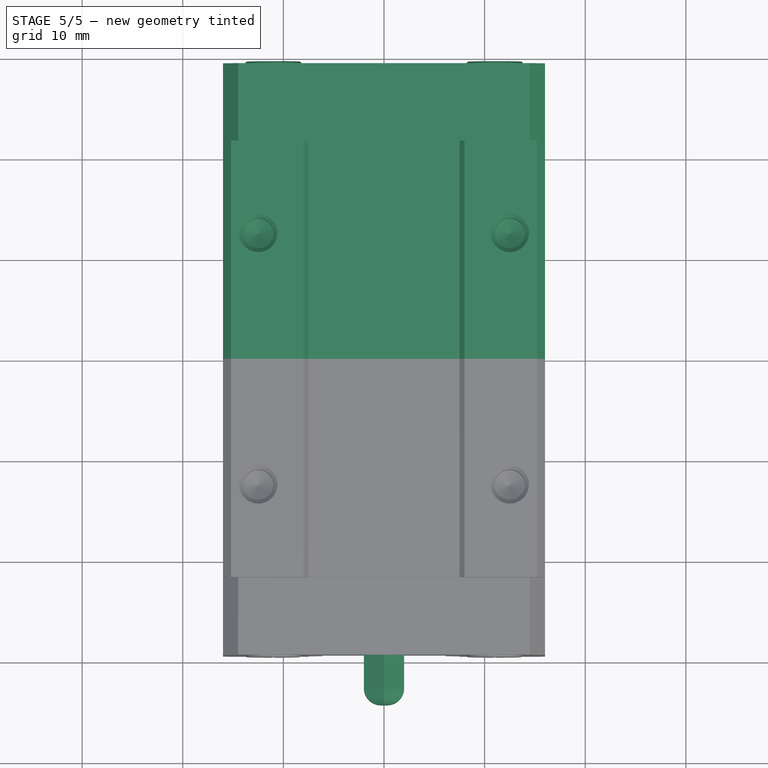
[diagram: stage 5 of 5 — top view after this stage's code; geometry added in this stage tinted green]
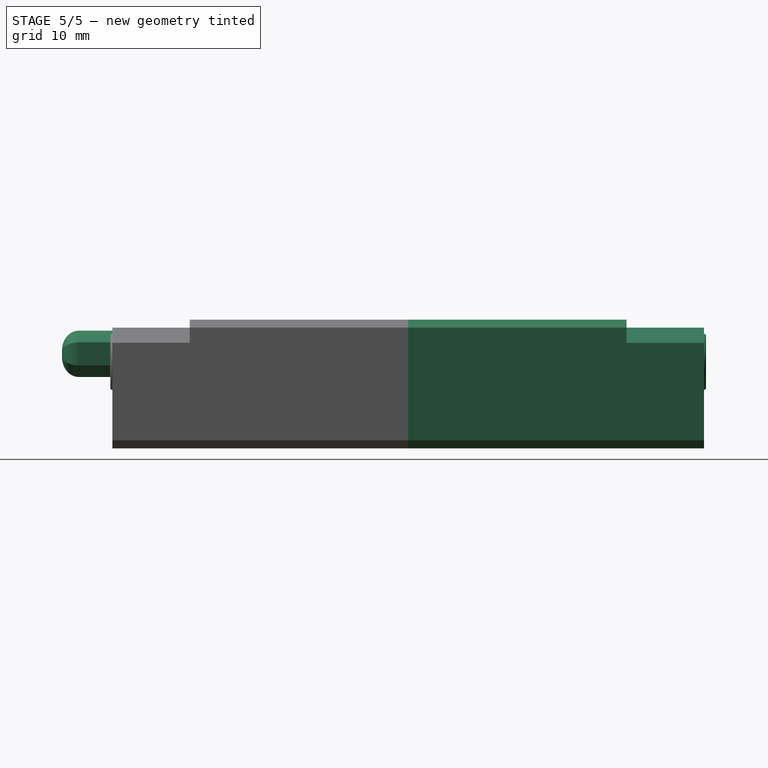
[diagram: stage 5 of 5 — right view after this stage's code; geometry added in this stage tinted green]
FEATURE [Part::Mirroring] Part__Mirroring  label="Cut (Mirror #1)"
  Base = (0,0,0)
  Normal = (0,1,0)
  Source = -> Cut
FEATURE [Part::MultiFuse] Fusion003  label="MGN15"
  Shapes = -> [Cut,Part__Mirroring]
FEATURE [PartDesign::Body] Body006
  Group = -> [Sketch011,Pad005]
  Origin = -> Origin006
  Placement = pos=(0,-29.4,9.4) rot=(0,0,1;0rad)
  Tip = -> Pad005
  expr: .Placement.Base.y = <<Set MGN Block Parameters>>.length / 2 * -1
FEATURE [Part::MultiFuse] Fusion004  label="MGN15H"
  Shapes = -> [Body006,Fusion003]
  expr: Label = <<Set MGN Block Parameters>>.modelName
FEATURE [Part::Fillet] Fillet002  label="MGN15H001"
  Base = -> Fusion004
  Edges = 6 edges r=1.7: [Edge4,Edge7,Edge10,Edge32,Edge33,Edge34]
  expr: Label = <<Set MGN Block Parameters>>.modelName
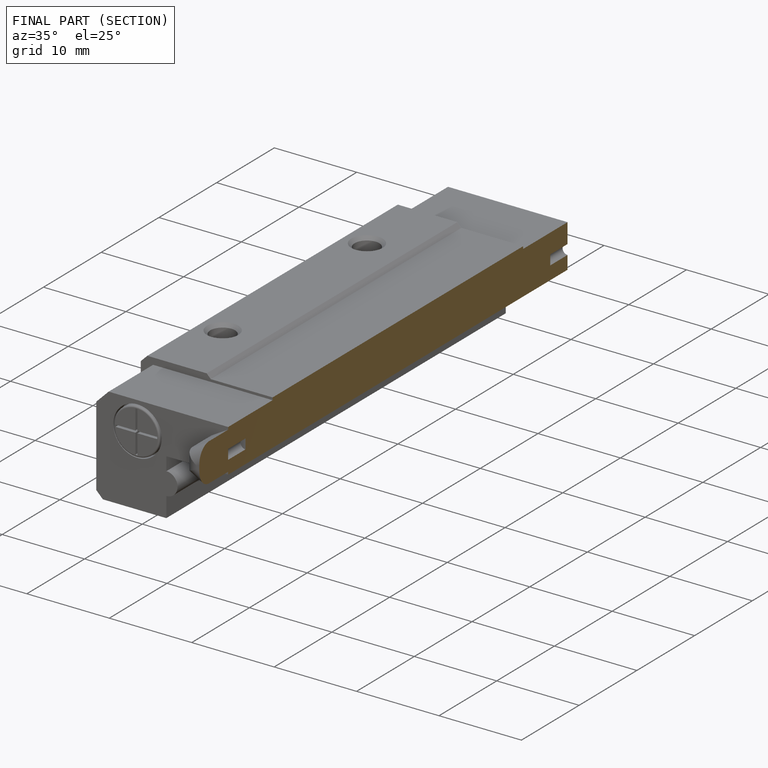
[diagram: finished part — half-section view (interior)]
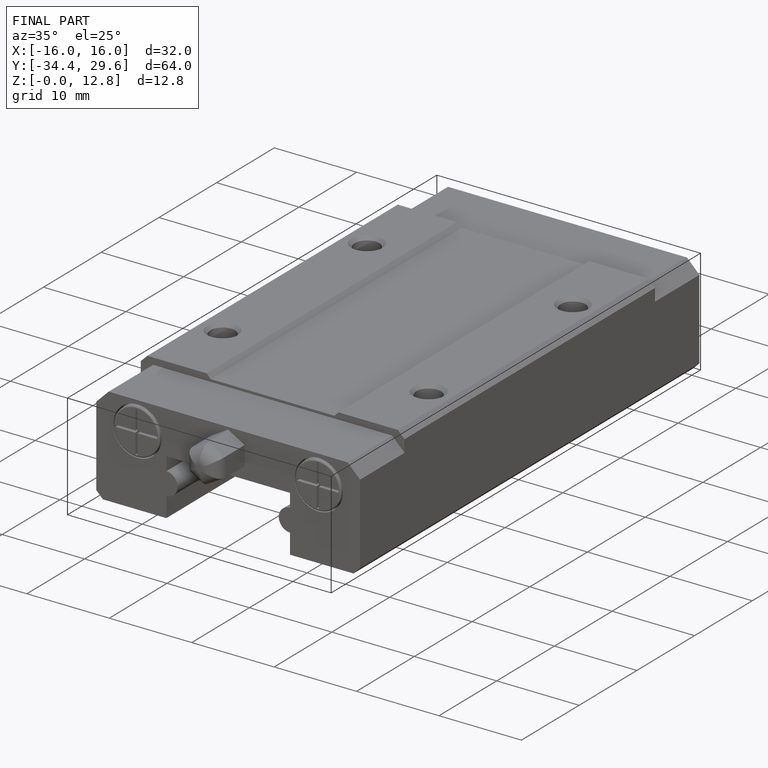
[diagram: finished part — iso view with bounding-box wireframe]
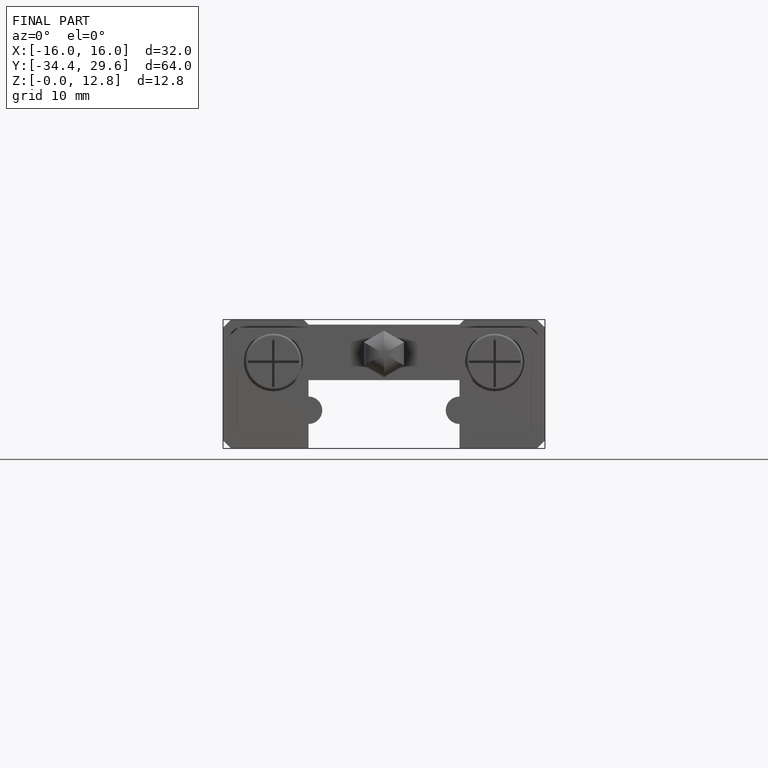
[diagram: finished part — front view with bounding-box wireframe]
